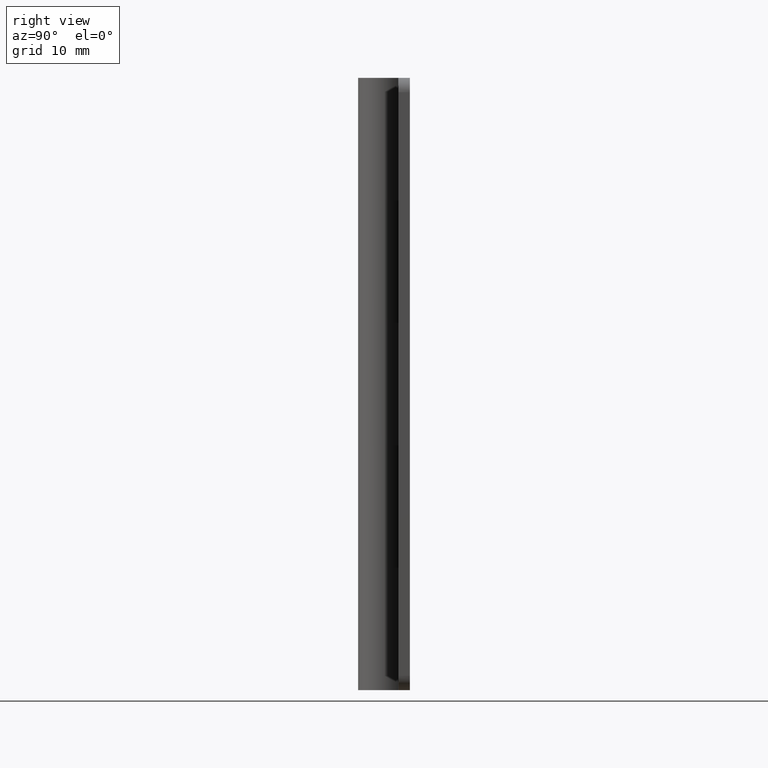
[diagram: clean part render]
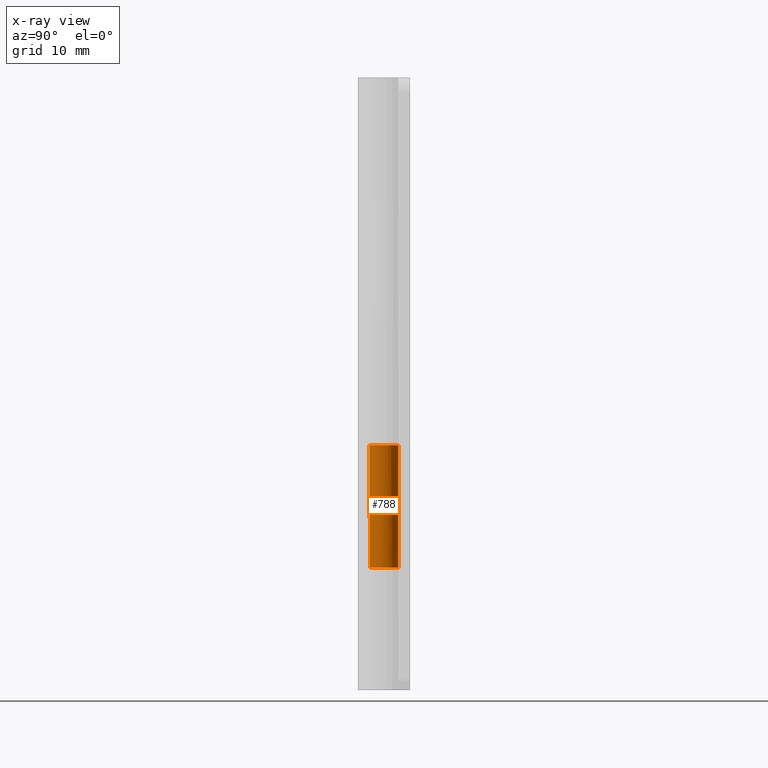
[diagram: x-ray — body ghosted, one internal face saturated and labeled with its STEP entity id]
A machine part, right view, then the same camera in x-ray: the body is ghosted and one INTERNAL B-rep face — a face not visible from any outside direction — is saturated and labeled: STEP entity #788.
In plain terms, the highlighted face is a freeform B-spline surface patch.
Its self-contained STEP definition (entity closure, byte-faithful):
#306=CARTESIAN_POINT('',(9.184352E-017,1.500000000000000,25.599990999999900));
#307=VERTEX_POINT('',#306);
#313=CARTESIAN_POINT('',(-1.265338187045112,0.805555257201757,25.599990999999900));
#314=VERTEX_POINT('',#313);
#315=CARTESIAN_POINT('',(-1.265338187045112,0.805555257201757,25.599990999999900));
#316=CARTESIAN_POINT('',(-1.890422170038043,-0.176304927708086,25.599990999999903));
#317=CARTESIAN_POINT('',(-1.094556497522580,-1.025644223759439,25.599990999999900));
#318=CARTESIAN_POINT('',(-0.298690825007115,-1.874983519810793,25.599990999999903));
#319=CARTESIAN_POINT('',(0.721687991516197,-1.314977734754972,25.599990999999900));
#320=CARTESIAN_POINT('',(1.742066808039507,-0.754971949699152,25.599990999999903));
#321=CARTESIAN_POINT('',(1.453008362352478,0.372514025150423,25.599990999999900));
#322=CARTESIAN_POINT('',(1.163949916665448,1.500000000000000,25.599990999999903));
#323=CARTESIAN_POINT('',(0.0,1.500000000000000,25.599990999999900));
#331=(BOUNDED_CURVE()B_SPLINE_CURVE(2,(#315,#316,#317,#318,#319,#320,#321,#322,#323),.UNSPECIFIED.,.F.,.U.)B_SPLINE_CURVE_WITH_KNOTS((3,2,2,2,3),(0.0,0.250000000000000,0.500000000000000,0.750000000000000,1.0),.UNSPECIFIED.)CURVE()GEOMETRIC_REPRESENTATION_ITEM()RATIONAL_B_SPLINE_CURVE((1.0,0.790045151695021,1.0,0.790045151695021,1.0,0.790045151695021,1.0,0.790045151695021,1.0))REPRESENTATION_ITEM(''));
#332=EDGE_CURVE('',#314,#307,#331,.T.);
#406=CARTESIAN_POINT('',(-1.265338187045112,0.805555257201757,12.800002999999940));
#407=VERTEX_POINT('',#406);
#413=CARTESIAN_POINT('',(9.184352E-017,1.500000000000000,12.800002999999940));
#414=VERTEX_POINT('',#413);
#415=CARTESIAN_POINT('',(0.0,1.500000000000000,12.800002999999940));
#416=CARTESIAN_POINT('',(1.163949916665447,1.500000000000000,12.800002999999940));
#417=CARTESIAN_POINT('',(1.453008362352478,0.372514025150424,12.800002999999940));
#418=CARTESIAN_POINT('',(1.742066808039509,-0.754971949699152,12.800002999999940));
#419=CARTESIAN_POINT('',(0.721687991516197,-1.314977734754972,12.800002999999940));
#420=CARTESIAN_POINT('',(-0.298690825007115,-1.874983519810793,12.800002999999940));
#421=CARTESIAN_POINT('',(-1.094556497522579,-1.025644223759440,12.800002999999940));
#422=CARTESIAN_POINT('',(-1.890422170038045,-0.176304927708087,12.800002999999940));
#423=CARTESIAN_POINT('',(-1.265338187045112,0.805555257201758,12.800002999999940));
#431=(BOUNDED_CURVE()B_SPLINE_CURVE(2,(#415,#416,#417,#418,#419,#420,#421,#422,#423),.UNSPECIFIED.,.F.,.U.)B_SPLINE_CURVE_WITH_KNOTS((3,2,2,2,3),(0.0,0.250000000000000,0.500000000000000,0.750000000000000,1.0),.UNSPECIFIED.)CURVE()GEOMETRIC_REPRESENTATION_ITEM()RATIONAL_B_SPLINE_CURVE((1.0,0.790045151695020,1.0,0.790045151695020,1.0,0.790045151695020,1.0,0.790045151695020,1.0))REPRESENTATION_ITEM(''));
#432=EDGE_CURVE('',#414,#407,#431,.T.);
#624=CARTESIAN_POINT('',(9.184352E-017,1.500000000000000,25.599990999999900));
#625=CARTESIAN_POINT('',(9.184352E-017,1.500000000000000,12.800002999999940));
#626=QUASI_UNIFORM_CURVE('',1,(#624,#625),.UNSPECIFIED.,.F.,.U.);
#627=EDGE_CURVE('',#307,#414,#626,.T.);
#756=CARTESIAN_POINT('',(-1.243817608924031,0.838401905848565,25.919990699999911));
#757=CARTESIAN_POINT('',(-1.243817608924031,0.838401905848565,12.472003307499939));
#758=CARTESIAN_POINT('',(-2.285337886328069,-0.706753528615075,25.919990699999911));
#759=CARTESIAN_POINT('',(-2.285337886328069,-0.706753528615075,12.472003307499939));
#760=CARTESIAN_POINT('',(-0.553374910673123,-1.394193748457334,25.919990699999911));
#761=CARTESIAN_POINT('',(-0.553374910673123,-1.394193748457334,12.472003307499939));
#762=CARTESIAN_POINT('',(1.178588064981822,-2.081633968299592,25.919990699999911));
#763=CARTESIAN_POINT('',(1.178588064981822,-2.081633968299592,12.472003307499939));
#764=CARTESIAN_POINT('',(1.480218011968363,-0.242805759907846,25.919990699999911));
#765=CARTESIAN_POINT('',(1.480218011968363,-0.242805759907846,12.472003307499939));
#766=CARTESIAN_POINT('',(1.781847958954903,1.596022448483901,25.919990699999911));
#767=CARTESIAN_POINT('',(1.781847958954903,1.596022448483901,12.472003307499939));
#768=CARTESIAN_POINT('',(-0.078970589409551,1.497919772887823,25.919990699999911));
#769=CARTESIAN_POINT('',(-0.078970589409551,1.497919772887823,12.472003307499939));
#777=(BOUNDED_SURFACE()B_SPLINE_SURFACE(1,2,((#756,#758,#760,#762,#764,#766,#768),(#757,#759,#761,#763,#765,#767,#769)),.UNSPECIFIED.,.F.,.F.,.U.)B_SPLINE_SURFACE_WITH_KNOTS((2,2),(3,2,2,3),(0.0,13.447987392499970),(0.0,2.872572647849120,5.745145295698240,8.617717943547360),.UNSPECIFIED.)GEOMETRIC_REPRESENTATION_ITEM()RATIONAL_B_SPLINE_SURFACE(((1.0,0.627057105746662,1.0,0.627057105746662,1.0,0.627057105746662,1.0),(1.0,0.627057105746662,1.0,0.627057105746662,1.0,0.627057105746662,1.0)))REPRESENTATION_ITEM('')SURFACE());
#778=CARTESIAN_POINT('',(-1.265338187045112,0.805555257201757,25.599990999999900));
#779=CARTESIAN_POINT('',(-1.265338187045112,0.805555257201757,12.800002999999940));
#780=QUASI_UNIFORM_CURVE('',1,(#778,#779),.UNSPECIFIED.,.F.,.U.);
#781=EDGE_CURVE('',#314,#407,#780,.T.);
#782=ORIENTED_EDGE('',*,*,#781,.F.);
#783=ORIENTED_EDGE('',*,*,#332,.T.);
#784=ORIENTED_EDGE('',*,*,#627,.T.);
#785=ORIENTED_EDGE('',*,*,#432,.T.);
#786=EDGE_LOOP('',(#782,#783,#784,#785));
#787=FACE_OUTER_BOUND('',#786,.T.);
#788=ADVANCED_FACE('',(#787),#777,.F.);